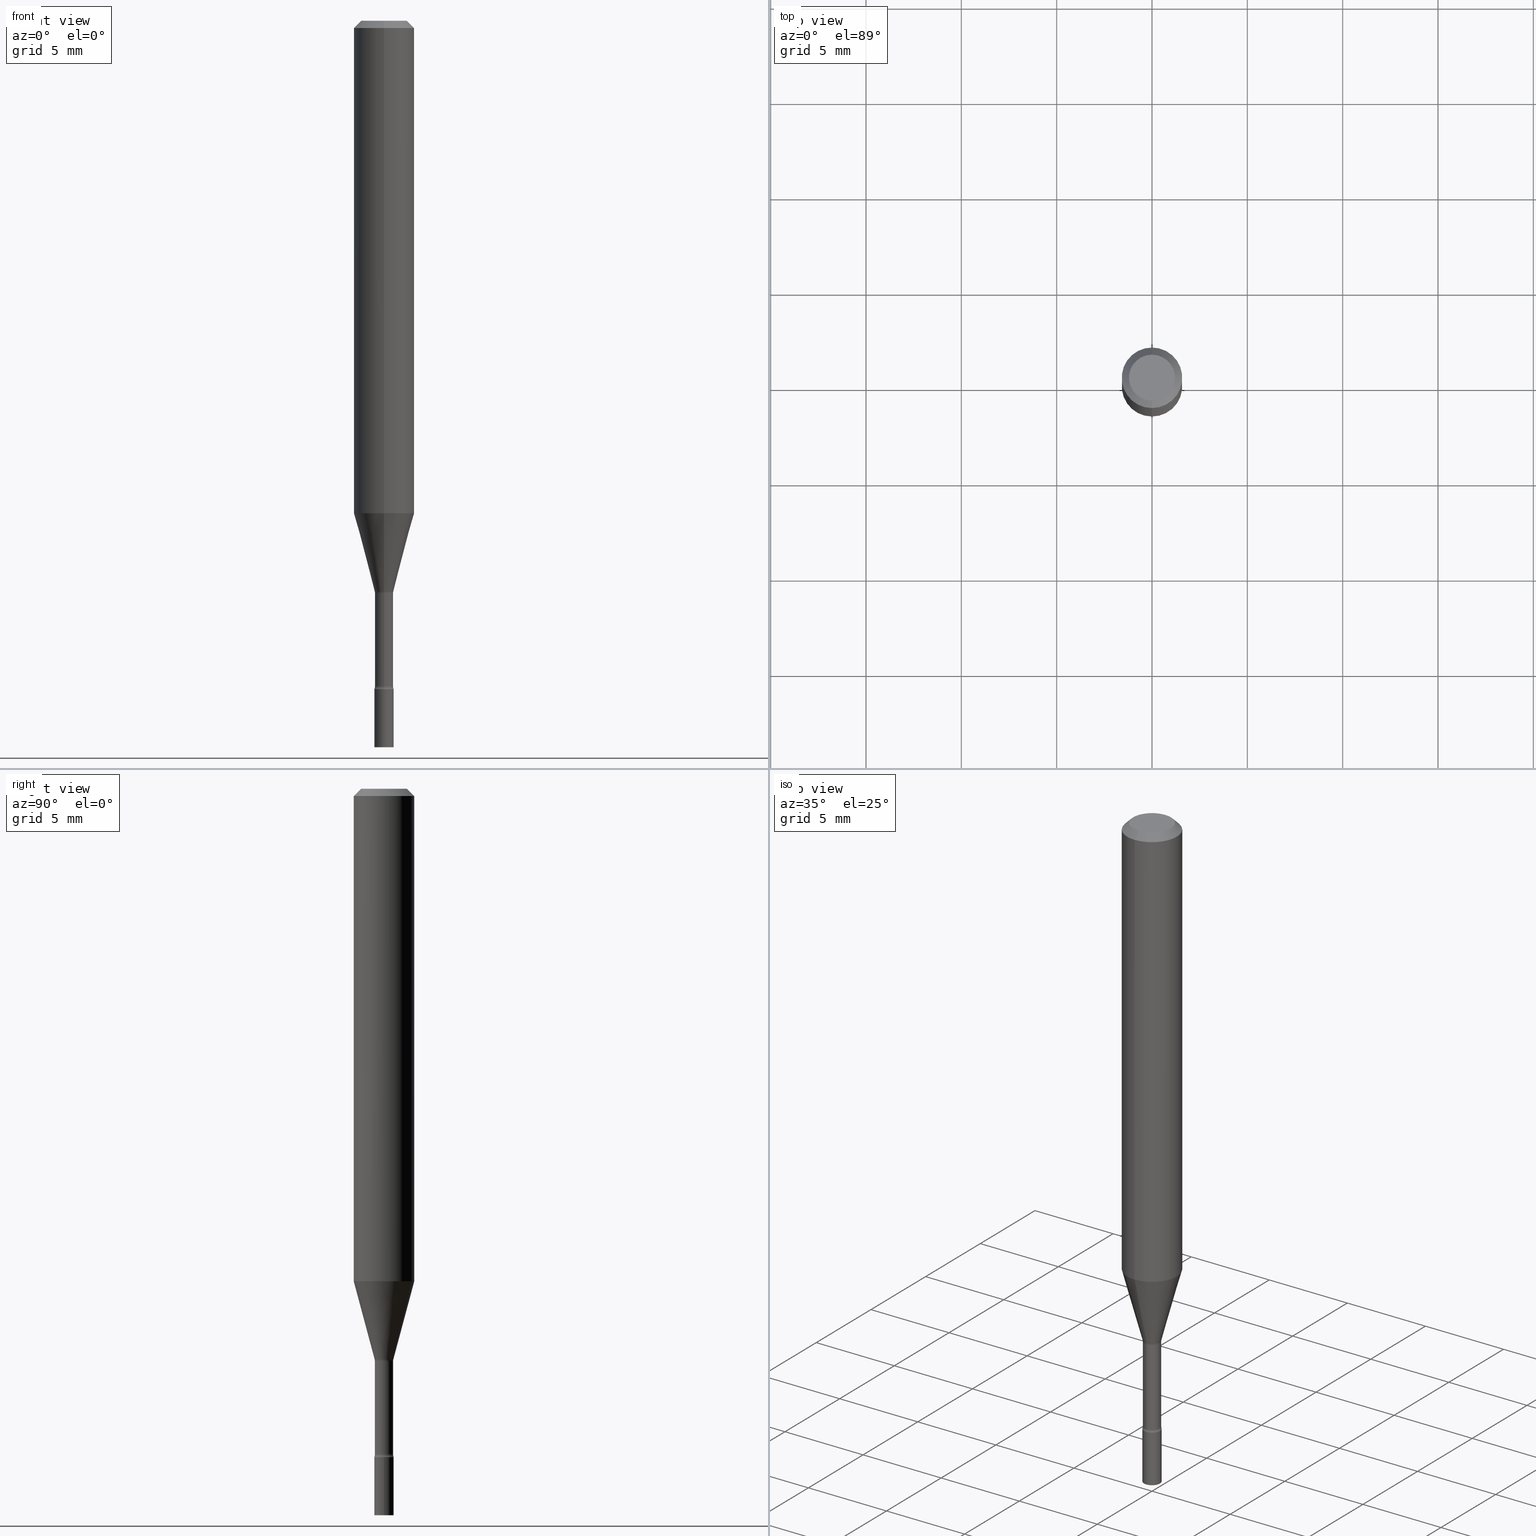
[diagram: canonical four-view strip — front | top / right | iso, engineering-drawing reading convention]
A machine part, canonical four-view strip (front | top / right | iso — engineering-drawing reading convention). The complete STEP part file that produces these views, byte-faithful:
ISO-10303-21;
HEADER;
FILE_DESCRIPTION (( 'STEP AP203' ),
    '1' );
FILE_NAME ('03407.STEP',
    '2024-03-08T21:18:10',
    ( '' ),
    ( '' ),
    'SwSTEP 2.0',
    'SolidWorks 2023',
    '' );
FILE_SCHEMA (( 'CONFIG_CONTROL_DESIGN' ));
ENDSEC;

DATA;
#1 = DIRECTION ( 'NONE',  ( 1.000000000000000000, -6.982962677686284065E-15, 0.000000000000000000 ) ) ;
#2 = ADVANCED_FACE ( 'NONE', ( #42 ), #229, .T. ) ;
#3 = CARTESIAN_POINT ( 'NONE',  ( 2.890482472440056423E-29, -4.126842913412989440E-15, -1.181974787463810905 ) ) ;
#4 = CC_DESIGN_PERSON_AND_ORGANIZATION_ASSIGNMENT ( #477, #267, ( #126 ) ) ;
#5 = EDGE_CURVE ( 'NONE', #189, #463, #41, .T. ) ;
#6 = AXIS2_PLACEMENT_3D ( 'NONE', #30, #480, #356 ) ;
#7 = DIRECTION ( 'NONE',  ( -6.982962677686265922E-15, -1.000000000000000000, 3.483106191921935554E-15 ) ) ;
#8 = APPROVAL ( #112, 'UNSPECIFIED' ) ;
#9 = AXIS2_PLACEMENT_3D ( 'NONE', #412, #100, #149 ) ;
#10 = DIRECTION ( 'NONE',  ( 2.445495417718738301E-29, -3.491443229612393590E-15, -1.000000000000000000 ) ) ;
#11 = ORIENTED_EDGE ( 'NONE', *, *, #485, .F. ) ;
#12 = ORIENTED_EDGE ( 'NONE', *, *, #491, .F. ) ;
#13 = DIRECTION ( 'NONE',  ( -2.445495417718738301E-29, 3.491443229612393590E-15, 1.000000000000000000 ) ) ;
#14 = ORIENTED_EDGE ( 'NONE', *, *, #485, .T. ) ;
#15 = PERSON_AND_ORGANIZATION_ROLE ( 'design_supplier' ) ;
#16 = PLANE ( 'NONE',  #446 ) ;
#17 = DIRECTION ( 'NONE',  ( -1.807323732225328562E-15, -0.2588190451025179639, 0.9659258262890690894 ) ) ;
#18 = EDGE_LOOP ( 'NONE', ( #274, #313, #487, #11 ) ) ;
#19 = ORIENTED_EDGE ( 'NONE', *, *, #5, .T. ) ;
#20 = PERSON_AND_ORGANIZATION_ROLE ( 'creator' ) ;
#21 = DIRECTION ( 'NONE',  ( -2.445495417718738301E-29, 3.491443229612393590E-15, 1.000000000000000000 ) ) ;
#22 = CIRCLE ( 'NONE', #292, 0.01499999999999998904 ) ;
#23 = VECTOR ( 'NONE', #364, 39.37007874015748143 ) ;
#24 = PERSON_AND_ORGANIZATION ( #63, #443 ) ;
#25 = CARTESIAN_POINT ( 'NONE',  ( 3.668243126578114756E-31, -5.237164844418600911E-17, -0.01500000000000003067 ) ) ;
#26 = ORIENTED_EDGE ( 'NONE', *, *, #37, .T. ) ;
#27 = DIRECTION ( 'NONE',  ( -2.445495417718738301E-29, 3.491443229612393590E-15, 1.000000000000000000 ) ) ;
#28 = DIRECTION ( 'NONE',  ( -2.445495417718738301E-29, 3.491443229612393590E-15, 1.000000000000000000 ) ) ;
#29 = EDGE_CURVE ( 'NONE', #260, #489, #284, .T. ) ;
#30 = CARTESIAN_POINT ( 'NONE',  ( 1.396592535537619965E-16, 0.01999999999999476155, -1.500000000000000222 ) ) ;
#31 = ADVANCED_BREP_SHAPE_REPRESENTATION ( '03407', ( #472, #473, #316 ), #119 ) ;
#32 = EDGE_LOOP ( 'NONE', ( #441, #79, #259, #104 ) ) ;
#33 = CLOSED_SHELL ( 'NONE', ( #427, #169, #243, #216, #152, #58, #2, #199, #180, #410, #358, #507, #339, #460 ) ) ;
#34 = AXIS2_PLACEMENT_3D ( 'NONE', #120, #317, #397 ) ;
#35 = CARTESIAN_POINT ( 'NONE',  ( 2.890513926601829062E-29, -4.126797869263070906E-15, -1.181974787463810905 ) ) ;
#36 = DIRECTION ( 'NONE',  ( -6.982962677686265922E-15, -1.000000000000000000, 0.000000000000000000 ) ) ;
#37 = EDGE_CURVE ( 'NONE', #250, #222, #368, .T. ) ;
#38 = DIRECTION ( 'NONE',  ( 7.105427357601000281E-15, 1.000000000000000000, 0.000000000000000000 ) ) ;
#39 = AXIS2_PLACEMENT_3D ( 'NONE', #128, #449, #408 ) ;
#40 = SECURITY_CLASSIFICATION ( '', '', #276 ) ;
#41 = LINE ( 'NONE', #194, #286 ) ;
#42 = FACE_OUTER_BOUND ( 'NONE', #303, .T. ) ;
#43 = APPROVAL ( #309, 'UNSPECIFIED' ) ;
#44 = CARTESIAN_POINT ( 'NONE',  ( 2.401634446869427315E-16, 0.03379999999999587501, -1.181974787463811127 ) ) ;
#45 = APPLICATION_CONTEXT ( 'configuration controlled 3d designs of mechanical parts and assemblies' ) ;
#46 = VERTEX_POINT ( 'NONE', #486 ) ;
#47 = CARTESIAN_POINT ( 'NONE',  ( 2.906514588320573934E-16, 0.01931111260565986434, -1.178092501787273205 ) ) ;
#48 = CIRCLE ( 'NONE', #88, 0.06250000000000000000 ) ;
#49 = DIRECTION ( 'NONE',  ( -2.445495417718738301E-29, 3.491443229612393590E-15, 1.000000000000000000 ) ) ;
#50 = FACE_OUTER_BOUND ( 'NONE', #18, .T. ) ;
#51 = EDGE_CURVE ( 'NONE', #250, #189, #385, .T. ) ;
#52 = CARTESIAN_POINT ( 'NONE',  ( -2.360241385057623348E-16, -0.03380000000000482618, -1.374121224617320447 ) ) ;
#53 = VERTEX_POINT ( 'NONE', #73 ) ;
#54 = VECTOR ( 'NONE', #167, 39.37007874015748143 ) ;
#55 = DIRECTION ( 'NONE',  ( 4.937700262164548042E-15, 0.7071067811865451302, -0.7071067811865499042 ) ) ;
#56 = ORIENTED_EDGE ( 'NONE', *, *, #491, .T. ) ;
#57 = VERTEX_POINT ( 'NONE', #83 ) ;
#58 = ADVANCED_FACE ( 'NONE', ( #50 ), #118, .T. ) ;
#59 = CARTESIAN_POINT ( 'NONE',  ( -0.02000000000000000042, -4.885624580782109696E-15, -1.500000000000000222 ) ) ;
#60 = ORIENTED_EDGE ( 'NONE', *, *, #268, .F. ) ;
#61 = ORIENTED_EDGE ( 'NONE', *, *, #318, .F. ) ;
#62 = FACE_OUTER_BOUND ( 'NONE', #506, .T. ) ;
#63 = PERSON ( 'UNSPECIFIED', 'UNSPECIFIED', 'UNSPECIFIED', ('UNSPECIFIED'), ('UNSPECIFIED'), ('UNSPECIFIED') ) ;
#64 = EDGE_LOOP ( 'NONE', ( #150, #281, #275, #513 ) ) ;
#65 = ORIENTED_EDGE ( 'NONE', *, *, #404, .F. ) ;
#66 = DATE_AND_TIME ( #71, #417 ) ;
#67 = DIRECTION ( 'NONE',  ( -6.982962677686265922E-15, -1.000000000000000000, 3.491443229612393195E-15 ) ) ;
#68 = CIRCLE ( 'NONE', #366, 0.01880000000000000074 ) ;
#69 = AXIS2_PLACEMENT_3D ( 'NONE', #407, #326, #496 ) ;
#70 = AXIS2_PLACEMENT_3D ( 'NONE', #135, #273, #425 ) ;
#71 = CALENDAR_DATE ( 2024, 8, 3 ) ;
#72 = CARTESIAN_POINT ( 'NONE',  ( 2.881019814769580720E-29, -4.113243089222302259E-15, -1.178092501787273205 ) ) ;
#73 = CARTESIAN_POINT ( 'NONE',  ( -4.364351673553668696E-16, -0.06250000000000356659, -1.016909379709240335 ) ) ;
#74 = PERSON_AND_ORGANIZATION_ROLE ( 'classification_officer' ) ;
#75 = EDGE_CURVE ( 'NONE', #394, #98, #107, .T. ) ;
#76 = CARTESIAN_POINT ( 'NONE',  ( 3.668203209277704895E-29, -5.237222008264718177E-15, -1.500000000000000222 ) ) ;
#77 = ORIENTED_EDGE ( 'NONE', *, *, #294, .T. ) ;
#78 = DIRECTION ( 'NONE',  ( 1.000000000000000000, -6.982962677686265922E-15, 4.876176775795935793E-29 ) ) ;
#79 = ORIENTED_EDGE ( 'NONE', *, *, #124, .T. ) ;
#80 = CIRCLE ( 'NONE', #240, 0.01500000000000001853 ) ;
#81 = CARTESIAN_POINT ( 'NONE',  ( 4.440892098500625669E-16, 0.06250000000000000000, -2.182152018507745747E-16 ) ) ;
#82 = EDGE_CURVE ( 'NONE', #308, #46, #22, .T. ) ;
#83 = CARTESIAN_POINT ( 'NONE',  ( 4.440892098500875639E-16, 0.06249999999999995143, -0.01500000000000024751 ) ) ;
#84 = DIRECTION ( 'NONE',  ( -2.445495417718738301E-29, 3.491443229612393590E-15, 1.000000000000000000 ) ) ;
#85 = DIRECTION ( 'NONE',  ( 1.000000000000000000, -6.982962677686284065E-15, 0.000000000000000000 ) ) ;
#86 = LENGTH_MEASURE_WITH_UNIT ( LENGTH_MEASURE( 0.02539999999999999897 ), #290 );
#87 = EDGE_CURVE ( 'NONE', #53, #466, #48, .T. ) ;
#88 = AXIS2_PLACEMENT_3D ( 'NONE', #370, #49, #134 ) ;
#89 = CYLINDRICAL_SURFACE ( 'NONE', #214, 0.06250000000000000000 ) ;
#90 = EDGE_CURVE ( 'NONE', #168, #57, #253, .T. ) ;
#91 = LINE ( 'NONE', #383, #488 ) ;
#92 = ORIENTED_EDGE ( 'NONE', *, *, #499, .F. ) ;
#93 = CARTESIAN_POINT ( 'NONE',  ( 2.890513926601829062E-29, -4.126797869263070906E-15, -1.181974787463810905 ) ) ;
#94 = ORIENTED_EDGE ( 'NONE', *, *, #51, .T. ) ;
#95 = EDGE_CURVE ( 'NONE', #466, #53, #374, .T. ) ;
#96 = CC_DESIGN_APPROVAL ( #43, ( #138 ) ) ;
#97 = FACE_OUTER_BOUND ( 'NONE', #435, .T. ) ;
#98 = VERTEX_POINT ( 'NONE', #332 ) ;
#99 = DATE_AND_TIME ( #314, #396 ) ;
#100 = DIRECTION ( 'NONE',  ( -2.445495417718738301E-29, 3.491443229612393590E-15, 1.000000000000000000 ) ) ;
#101 = CALENDAR_DATE ( 2024, 8, 3 ) ;
#102 = DIRECTION ( 'NONE',  ( -6.982962677686265922E-15, -1.000000000000000000, 0.000000000000000000 ) ) ;
#103 = ORIENTED_EDGE ( 'NONE', *, *, #365, .F. ) ;
#104 = ORIENTED_EDGE ( 'NONE', *, *, #82, .F. ) ;
#105 = APPROVAL_STATUS ( 'not_yet_approved' ) ;
#106 = DIRECTION ( 'NONE',  ( -2.445468806185136597E-29, 3.491481338843145583E-15, 1.000000000000000000 ) ) ;
#107 = CIRCLE ( 'NONE', #415, 0.04749999999999999362 ) ;
#108 = APPROVAL_PERSON_ORGANIZATION ( #235, #8, #219 ) ;
#109 = ORIENTED_EDGE ( 'NONE', *, *, #351, .F. ) ;
#110 = CC_DESIGN_DATE_AND_TIME_ASSIGNMENT ( #182, #232, ( #40 ) ) ;
#111 = EDGE_LOOP ( 'NONE', ( #154, #379, #26, #65 ) ) ;
#112 = APPROVAL_STATUS ( 'not_yet_approved' ) ;
#113 = FACE_OUTER_BOUND ( 'NONE', #32, .T. ) ;
#114 = PRODUCT_DEFINITION_SHAPE ( 'NONE', 'NONE',  #138 ) ;
#115 = CARTESIAN_POINT ( 'NONE',  ( 1.396592535537590876E-16, 0.01999999999999518135, -1.380000000000000115 ) ) ;
#116 = EDGE_CURVE ( 'NONE', #98, #394, #177, .T. ) ;
#117 = CARTESIAN_POINT ( 'NONE',  ( -1.348487785899195480E-16, -0.01931111260566809387, -1.178092501787273205 ) ) ;
#118 = CONICAL_SURFACE ( 'NONE', #333, 0.01931111260566397911, 0.2617993877991500740 ) ;
#119 =( GEOMETRIC_REPRESENTATION_CONTEXT ( 3 ) GLOBAL_UNCERTAINTY_ASSIGNED_CONTEXT ( ( #497 ) ) GLOBAL_UNIT_ASSIGNED_CONTEXT ( ( #244, #171, #127 ) ) REPRESENTATION_CONTEXT ( 'NONE', 'WORKASPACE' ) );
#120 = CARTESIAN_POINT ( 'NONE',  ( 3.316907271900976096E-16, 0.04749999999999999362, -1.803014139647535596E-16 ) ) ;
#121 = VERTEX_POINT ( 'NONE', #47 ) ;
#122 = DIRECTION ( 'NONE',  ( -6.982962677686265922E-15, -1.000000000000000000, 3.491443229612393590E-15 ) ) ;
#123 = CARTESIAN_POINT ( 'NONE',  ( 0.000000000000000000, 0.000000000000000000, 0.000000000000000000 ) ) ;
#124 = EDGE_CURVE ( 'NONE', #121, #489, #475, .T. ) ;
#125 = VECTOR ( 'NONE', #55, 39.37007874015748143 ) ;
#126 = PRODUCT_DEFINITION_FORMATION_WITH_SPECIFIED_SOURCE ( 'ANY', '', #431, .NOT_KNOWN. ) ;
#127 =( NAMED_UNIT ( * ) SI_UNIT ( $, .STERADIAN. ) SOLID_ANGLE_UNIT ( ) );
#128 = CARTESIAN_POINT ( 'NONE',  ( 2.486847228314152234E-29, -3.550481368915166973E-15, -1.016909379709240557 ) ) ;
#129 = APPROVAL ( #105, 'UNSPECIFIED' ) ;
#130 = DIRECTION ( 'NONE',  ( 7.105427357601000281E-15, 1.000000000000000000, 0.000000000000000000 ) ) ;
#131 = AXIS2_PLACEMENT_3D ( 'NONE', #514, #322, #78 ) ;
#132 = CIRCLE ( 'NONE', #159, 0.06250000000000000000 ) ;
#133 = DIMENSIONAL_EXPONENTS ( 1.000000000000000000, 0.000000000000000000, 0.000000000000000000, 0.000000000000000000, 0.000000000000000000, 0.000000000000000000, 0.000000000000000000 ) ;
#134 = DIRECTION ( 'NONE',  ( -6.982962677686265922E-15, -1.000000000000000000, 4.370956789862821150E-15 ) ) ;
#135 = CARTESIAN_POINT ( 'NONE',  ( 3.374783676451858727E-29, -4.818191656865103840E-15, -1.380000000000000115 ) ) ;
#136 = CYLINDRICAL_SURFACE ( 'NONE', #343, 0.01880000000000000421 ) ;
#137 = ORIENTED_EDGE ( 'NONE', *, *, #519, .F. ) ;
#138 = PRODUCT_DEFINITION ( 'UNKNOWN', '', #126, #350 ) ;
#139 = CARTESIAN_POINT ( 'NONE',  ( 0.02000000000000000042, -5.376881261818443984E-15, -1.500000000000000222 ) ) ;
#140 = VERTEX_POINT ( 'NONE', #298 ) ;
#141 = ORIENTED_EDGE ( 'NONE', *, *, #299, .F. ) ;
#142 = COORDINATED_UNIVERSAL_TIME_OFFSET ( 5, 0, .BEHIND. ) ;
#143 = DIRECTION ( 'NONE',  ( -2.445495417718738301E-29, 3.491443229612393590E-15, 1.000000000000000000 ) ) ;
#144 = CIRCLE ( 'NONE', #453, 0.02000000000000000042 ) ;
#145 = AXIS2_PLACEMENT_3D ( 'NONE', #363, #450, #122 ) ;
#146 = LINE ( 'NONE', #183, #125 ) ;
#147 = ORIENTED_EDGE ( 'NONE', *, *, #294, .F. ) ;
#148 = APPROVAL_ROLE ( '' ) ;
#149 = DIRECTION ( 'NONE',  ( -6.982962677686265922E-15, -1.000000000000000000, 0.000000000000000000 ) ) ;
#150 = ORIENTED_EDGE ( 'NONE', *, *, #75, .F. ) ;
#151 = APPROVAL_DATE_TIME ( #156, #129 ) ;
#152 = ADVANCED_FACE ( 'NONE', ( #454 ), #89, .T. ) ;
#153 = DIRECTION ( 'NONE',  ( -6.982962677686265922E-15, -1.000000000000000000, 3.491443229612393590E-15 ) ) ;
#154 = ORIENTED_EDGE ( 'NONE', *, *, #5, .F. ) ;
#155 = ORIENTED_EDGE ( 'NONE', *, *, #29, .T. ) ;
#156 = DATE_AND_TIME ( #101, #495 ) ;
#157 = CARTESIAN_POINT ( 'NONE',  ( 3.374746952535488593E-29, -4.818244247603541543E-15, -1.380000000000000115 ) ) ;
#158 = CIRCLE ( 'NONE', #515, 0.01500000000000001853 ) ;
#159 = AXIS2_PLACEMENT_3D ( 'NONE', #320, #238, #319 ) ;
#160 = PERSON_AND_ORGANIZATION ( #63, #443 ) ;
#161 = FACE_OUTER_BOUND ( 'NONE', #376, .T. ) ;
#162 = DIRECTION ( 'NONE',  ( -2.445468806185136877E-29, 3.491481338843145188E-15, 1.000000000000000000 ) ) ;
#163 = EDGE_CURVE ( 'NONE', #140, #500, #144, .T. ) ;
#164 = CYLINDRICAL_SURFACE ( 'NONE', #447, 0.01880000000000000421 ) ;
#165 = PLANE ( 'NONE',  #6 ) ;
#166 = FACE_OUTER_BOUND ( 'NONE', #111, .T. ) ;
#167 = DIRECTION ( 'NONE',  ( -2.445468806185136877E-29, 3.491481338843145188E-15, 1.000000000000000000 ) ) ;
#168 = VERTEX_POINT ( 'NONE', #414 ) ;
#169 = ADVANCED_FACE ( 'NONE', ( #459 ), #136, .T. ) ;
#170 = CARTESIAN_POINT ( 'NONE',  ( 2.881019814769580720E-29, -4.113243089222302259E-15, -1.178092501787273205 ) ) ;
#171 =( NAMED_UNIT ( * ) PLANE_ANGLE_UNIT ( ) SI_UNIT ( $, .RADIAN. ) );
#172 = VECTOR ( 'NONE', #143, 39.37007874015748143 ) ;
#173 = CC_DESIGN_APPROVAL ( #129, ( #126 ) ) ;
#174 = EDGE_CURVE ( 'NONE', #260, #300, #184, .T. ) ;
#175 = CARTESIAN_POINT ( 'NONE',  ( -4.287811248607203282E-16, -0.06250000000000005551, -0.01499999999999981209 ) ) ;
#176 = DIRECTION ( 'NONE',  ( 1.000000000000000000, -7.105427357601001070E-15, 4.926315041838608080E-29 ) ) ;
#177 = CIRCLE ( 'NONE', #69, 0.04749999999999999362 ) ;
#178 = DIRECTION ( 'NONE',  ( 2.445495417718738301E-29, -3.491443229612393590E-15, -1.000000000000000000 ) ) ;
#179 = DIRECTION ( 'NONE',  ( -6.982962677686265922E-15, -1.000000000000000000, 0.000000000000000000 ) ) ;
#180 = ADVANCED_FACE ( 'NONE', ( #97 ), #315, .T. ) ;
#181 = ORIENTED_EDGE ( 'NONE', *, *, #95, .F. ) ;
#182 = DATE_AND_TIME ( #432, #334 ) ;
#183 = CARTESIAN_POINT ( 'NONE',  ( 4.364351673553919652E-16, 0.06249999999999995143, -0.01500000000000024751 ) ) ;
#184 = CIRCLE ( 'NONE', #9, 0.01880000000000000768 ) ;
#185 = VECTOR ( 'NONE', #287, 39.37007874015748143 ) ;
#186 = DIRECTION ( 'NONE',  ( -2.445495417718738301E-29, 3.491443229612393590E-15, 1.000000000000000000 ) ) ;
#187 = DIRECTION ( 'NONE',  ( 1.000000000000000000, -6.982962677686284065E-15, 0.000000000000000000 ) ) ;
#188 = ORIENTED_EDGE ( 'NONE', *, *, #499, .T. ) ;
#189 = VERTEX_POINT ( 'NONE', #59 ) ;
#190 = EDGE_CURVE ( 'NONE', #489, #46, #68, .T. ) ;
#191 = DIRECTION ( 'NONE',  ( -2.445495417718738301E-29, 3.491443229612393590E-15, 1.000000000000000000 ) ) ;
#192 = ORIENTED_EDGE ( 'NONE', *, *, #29, .F. ) ;
#193 = CARTESIAN_POINT ( 'NONE',  ( 2.401634446869476126E-16, 0.03379999999999522969, -1.374121224617320447 ) ) ;
#194 = CARTESIAN_POINT ( 'NONE',  ( -0.02000000000000000042, 1.421085471520200401E-16, -9.837870180509812545E-31 ) ) ;
#195 = ORIENTED_EDGE ( 'NONE', *, *, #371, .F. ) ;
#196 = DIRECTION ( 'NONE',  ( 1.000000000000000000, -7.105427357601001070E-15, 4.926315041838608080E-29 ) ) ;
#197 = AXIS2_PLACEMENT_3D ( 'NONE', #72, #28, #234 ) ;
#198 = CC_DESIGN_APPROVAL ( #8, ( #40 ) ) ;
#199 = ADVANCED_FACE ( 'NONE', ( #62 ), #378, .T. ) ;
#200 = EDGE_LOOP ( 'NONE', ( #261, #348 ) ) ;
#201 = DIRECTION ( 'NONE',  ( 1.000000000000000000, -6.982962677686284065E-15, 0.000000000000000000 ) ) ;
#202 = CYLINDRICAL_SURFACE ( 'NONE', #131, 0.02000000000000000042 ) ;
#203 = ORIENTED_EDGE ( 'NONE', *, *, #318, .T. ) ;
#204 = DIRECTION ( 'NONE',  ( -2.445495417718738021E-29, 3.491443229612393590E-15, 1.000000000000000000 ) ) ;
#205 = CIRCLE ( 'NONE', #505, 0.01880000000000000768 ) ;
#206 = APPROVAL_PERSON_ORGANIZATION ( #471, #129, #148 ) ;
#207 = CC_DESIGN_PERSON_AND_ORGANIZATION_ASSIGNMENT ( #311, #15, ( #126 ) ) ;
#208 = TOROIDAL_SURFACE ( 'NONE', #239, 0.03380000000000002447, 0.01500000000000001853 ) ;
#209 = AXIS2_PLACEMENT_3D ( 'NONE', #392, #27, #437 ) ;
#210 = LINE ( 'NONE', #398, #430 ) ;
#211 = CARTESIAN_POINT ( 'NONE',  ( -1.312796983404682503E-16, -0.01880000000000480592, -1.374121224617320447 ) ) ;
#212 = ORIENTED_EDGE ( 'NONE', *, *, #268, .T. ) ;
#213 = EDGE_LOOP ( 'NONE', ( #357, #155, #109, #60 ) ) ;
#214 = AXIS2_PLACEMENT_3D ( 'NONE', #123, #255, #411 ) ;
#215 = TOROIDAL_SURFACE ( 'NONE', #209, 0.03380000000000000365, 0.01499999999999998904 ) ;
#216 = ADVANCED_FACE ( 'NONE', ( #220 ), #354, .T. ) ;
#217 = CARTESIAN_POINT ( 'NONE',  ( 3.668243126578114756E-31, -5.237164844418600911E-17, -0.01500000000000003067 ) ) ;
#218 = EDGE_LOOP ( 'NONE', ( #92, #226 ) ) ;
#219 = APPROVAL_ROLE ( '' ) ;
#220 = FACE_OUTER_BOUND ( 'NONE', #64, .T. ) ;
#221 = ORIENTED_EDGE ( 'NONE', *, *, #282, .F. ) ;
#222 = VERTEX_POINT ( 'NONE', #272 ) ;
#223 = APPROVAL_ROLE ( '' ) ;
#224 = DIRECTION ( 'NONE',  ( -2.445495417718738301E-29, 3.491443229612393590E-15, 1.000000000000000000 ) ) ;
#225 = ADVANCED_FACE ( 'NONE', ( #381 ), #16, .T. ) ;
#226 = ORIENTED_EDGE ( 'NONE', *, *, #163, .F. ) ;
#227 = APPROVAL_DATE_TIME ( #66, #8 ) ;
#228 = EDGE_CURVE ( 'NONE', #300, #500, #158, .T. ) ;
#229 = CONICAL_SURFACE ( 'NONE', #197, 0.01931111260566397911, 0.2617993877991500740 ) ;
#230 = TOROIDAL_SURFACE ( 'NONE', #145, 0.03380000000000002447, 0.01500000000000001853 ) ;
#231 = CARTESIAN_POINT ( 'NONE',  ( -1.312796983405018262E-16, -0.01880000000000000421, 6.563913271671300931E-17 ) ) ;
#232 = DATE_TIME_ROLE ( 'classification_date' ) ;
#233 = CARTESIAN_POINT ( 'NONE',  ( -0.02000000000000000042, -4.885624580782109696E-15, -1.380000000000000115 ) ) ;
#234 = DIRECTION ( 'NONE',  ( -6.982962677686265922E-15, -1.000000000000000000, 0.000000000000000000 ) ) ;
#235 = PERSON_AND_ORGANIZATION ( #63, #443 ) ;
#236 = PLANE ( 'NONE',  #34 ) ;
#237 = ORIENTED_EDGE ( 'NONE', *, *, #288, .F. ) ;
#238 = DIRECTION ( 'NONE',  ( -2.445495417718738301E-29, 3.491443229612393590E-15, 1.000000000000000000 ) ) ;
#239 = AXIS2_PLACEMENT_3D ( 'NONE', #335, #337, #153 ) ;
#240 = AXIS2_PLACEMENT_3D ( 'NONE', #193, #196, #38 ) ;
#241 = FACE_OUTER_BOUND ( 'NONE', #218, .T. ) ;
#242 = DIRECTION ( 'NONE',  ( -6.982962677686265922E-15, -1.000000000000000000, 3.491443229612393195E-15 ) ) ;
#243 = ADVANCED_FACE ( 'NONE', ( #465 ), #208, .F. ) ;
#244 =( CONVERSION_BASED_UNIT ( 'INCH', #86 ) LENGTH_UNIT ( ) NAMED_UNIT ( #133 ) );
#245 = AXIS2_PLACEMENT_3D ( 'NONE', #44, #176, #130 ) ;
#246 = DIRECTION ( 'NONE',  ( -6.982962677686267499E-15, -1.000000000000000000, 0.000000000000000000 ) ) ;
#247 = AXIS2_PLACEMENT_3D ( 'NONE', #419, #504, #187 ) ;
#248 = ORIENTED_EDGE ( 'NONE', *, *, #124, .F. ) ;
#249 = DIRECTION ( 'NONE',  ( -1.000000000000000000, 6.982962677686265922E-15, -4.883557194083112340E-29 ) ) ;
#250 = VERTEX_POINT ( 'NONE', #139 ) ;
#251 = EDGE_CURVE ( 'NONE', #98, #57, #146, .T. ) ;
#252 = DIRECTION ( 'NONE',  ( -2.445495417718738301E-29, 3.491443229612393590E-15, 1.000000000000000000 ) ) ;
#253 = CIRCLE ( 'NONE', #304, 0.06250000000000000000 ) ;
#254 = CIRCLE ( 'NONE', #70, 0.02000000000000000042 ) ;
#255 = DIRECTION ( 'NONE',  ( -2.445495417718738301E-29, 3.491443229612393590E-15, 1.000000000000000000 ) ) ;
#256 = CARTESIAN_POINT ( 'NONE',  ( 0.02000000000000000042, -1.396592535537253145E-16, 9.752353551591871936E-31 ) ) ;
#257 = DIRECTION ( 'NONE',  ( -2.445495417718738301E-29, 3.491443229612393590E-15, 1.000000000000000000 ) ) ;
#258 = FACE_OUTER_BOUND ( 'NONE', #336, .T. ) ;
#259 = ORIENTED_EDGE ( 'NONE', *, *, #190, .T. ) ;
#260 = VERTEX_POINT ( 'NONE', #424 ) ;
#261 = ORIENTED_EDGE ( 'NONE', *, *, #116, .T. ) ;
#262 = AXIS2_PLACEMENT_3D ( 'NONE', #157, #280, #1 ) ;
#263 = CARTESIAN_POINT ( 'NONE',  ( 0.000000000000000000, 0.000000000000000000, 0.000000000000000000 ) ) ;
#264 = CARTESIAN_POINT ( 'NONE',  ( 1.335820343229324654E-16, 0.01879999999999587210, -1.181974787463810905 ) ) ;
#265 = EDGE_LOOP ( 'NONE', ( #56, #502 ) ) ;
#266 = ORIENTED_EDGE ( 'NONE', *, *, #87, .T. ) ;
#267 = PERSON_AND_ORGANIZATION_ROLE ( 'creator' ) ;
#268 = EDGE_CURVE ( 'NONE', #300, #46, #340, .T. ) ;
#269 = DIRECTION ( 'NONE',  ( -6.982962677686265922E-15, -1.000000000000000000, 0.000000000000000000 ) ) ;
#270 = ORIENTED_EDGE ( 'NONE', *, *, #228, .F. ) ;
#271 = COORDINATED_UNIVERSAL_TIME_OFFSET ( 5, 0, .BEHIND. ) ;
#272 = CARTESIAN_POINT ( 'NONE',  ( 0.02000000000000000042, -4.957903501157267351E-15, -1.380000000000000115 ) ) ;
#273 = DIRECTION ( 'NONE',  ( -2.445495417718738301E-29, 3.491443229612393590E-15, 1.000000000000000000 ) ) ;
#274 = ORIENTED_EDGE ( 'NONE', *, *, #299, .T. ) ;
#275 = ORIENTED_EDGE ( 'NONE', *, *, #90, .T. ) ;
#276 = SECURITY_CLASSIFICATION_LEVEL ( 'unclassified' ) ;
#277 = DIRECTION ( 'NONE',  ( 1.000000000000000000, -6.982962677686265922E-15, 4.876176775795935793E-29 ) ) ;
#278 = ORIENTED_EDGE ( 'NONE', *, *, #174, .T. ) ;
#279 = CALENDAR_DATE ( 2024, 8, 3 ) ;
#280 = DIRECTION ( 'NONE',  ( -2.445468806185136597E-29, 3.491481338843145583E-15, 1.000000000000000000 ) ) ;
#281 = ORIENTED_EDGE ( 'NONE', *, *, #519, .T. ) ;
#282 = EDGE_CURVE ( 'NONE', #300, #260, #205, .T. ) ;
#283 = FACE_OUTER_BOUND ( 'NONE', #458, .T. ) ;
#284 = LINE ( 'NONE', #433, #172 ) ;
#285 = CARTESIAN_POINT ( 'NONE',  ( 0.000000000000000000, 0.000000000000000000, 0.000000000000000000 ) ) ;
#286 = VECTOR ( 'NONE', #162, 39.37007874015748143 ) ;
#287 = DIRECTION ( 'NONE',  ( -2.445495417718738301E-29, 3.491443229612393590E-15, 1.000000000000000000 ) ) ;
#288 = EDGE_CURVE ( 'NONE', #121, #466, #503, .T. ) ;
#289 = CARTESIAN_POINT ( 'NONE',  ( 3.668203209277704895E-29, -5.237222008264718177E-15, -1.500000000000000222 ) ) ;
#290 =( LENGTH_UNIT ( ) NAMED_UNIT ( * ) SI_UNIT ( $, .METRE. ) );
#291 = DIRECTION ( 'NONE',  ( -2.445468806185136597E-29, 3.491481338843145583E-15, 1.000000000000000000 ) ) ;
#292 = AXIS2_PLACEMENT_3D ( 'NONE', #328, #249, #246 ) ;
#293 = CIRCLE ( 'NONE', #462, 0.01880000000000000074 ) ;
#294 = EDGE_CURVE ( 'NONE', #53, #168, #91, .T. ) ;
#295 = DIRECTION ( 'NONE',  ( -6.982962677686265922E-15, -1.000000000000000000, 0.000000000000000000 ) ) ;
#296 = AXIS2_PLACEMENT_3D ( 'NONE', #217, #10, #349 ) ;
#297 = CIRCLE ( 'NONE', #247, 0.02000000000000000042 ) ;
#298 = CARTESIAN_POINT ( 'NONE',  ( 1.421085471520538132E-16, 0.01999999999999519523, -1.380000000000000115 ) ) ;
#299 = EDGE_CURVE ( 'NONE', #308, #121, #327, .T. ) ;
#300 = VERTEX_POINT ( 'NONE', #211 ) ;
#301 = DIRECTION ( 'NONE',  ( -1.000000000000000000, 6.982962677686265922E-15, -4.883557194083112340E-29 ) ) ;
#302 = CARTESIAN_POINT ( 'NONE',  ( 2.881019814769580720E-29, -4.113243089222302259E-15, -1.178092501787273205 ) ) ;
#303 = EDGE_LOOP ( 'NONE', ( #237, #384, #14, #181 ) ) ;
#304 = AXIS2_PLACEMENT_3D ( 'NONE', #456, #372, #7 ) ;
#305 = PERSON_AND_ORGANIZATION ( #63, #443 ) ;
#306 = ADVANCED_FACE ( 'NONE', ( #461 ), #165, .T. ) ;
#307 = DIRECTION ( 'NONE',  ( 1.839019923739598738E-15, 0.2588190451025247363, 0.9659258262890673130 ) ) ;
#308 = VERTEX_POINT ( 'NONE', #117 ) ;
#309 = APPROVAL_STATUS ( 'not_yet_approved' ) ;
#310 = DIRECTION ( 'NONE',  ( 6.982962677686265922E-15, 1.000000000000000000, -3.483106191921935554E-15 ) ) ;
#311 = PERSON_AND_ORGANIZATION ( #63, #443 ) ;
#312 = CARTESIAN_POINT ( 'NONE',  ( 1.372137078140271983E-16, 0.01931111260565986434, -1.178092501787273205 ) ) ;
#313 = ORIENTED_EDGE ( 'NONE', *, *, #288, .T. ) ;
#314 = CALENDAR_DATE ( 2024, 8, 3 ) ;
#315 = CONICAL_SURFACE ( 'NONE', #296, 0.06250000000000000000, 0.7853981633974483900 ) ;
#316 = AXIS2_PLACEMENT_3D ( 'NONE', #369, #493, #330 ) ;
#317 = DIRECTION ( 'NONE',  ( 2.445495417718738021E-29, -3.491443229612393590E-15, -1.000000000000000000 ) ) ;
#318 = EDGE_CURVE ( 'NONE', #260, #140, #80, .T. ) ;
#319 = DIRECTION ( 'NONE',  ( -6.982962677686265922E-15, -1.000000000000000000, 3.483106191921935554E-15 ) ) ;
#320 = CARTESIAN_POINT ( 'NONE',  ( 3.668243126578114756E-31, -5.237164844418600911E-17, -0.01500000000000003067 ) ) ;
#321 = EDGE_CURVE ( 'NONE', #57, #168, #132, .T. ) ;
#322 = DIRECTION ( 'NONE',  ( -2.445468806185136597E-29, 3.491481338843145583E-15, 1.000000000000000000 ) ) ;
#323 = CLOSED_SHELL ( 'NONE', ( #399, #225, #440, #306 ) ) ;
#324 = APPROVAL_PERSON_ORGANIZATION ( #24, #43, #223 ) ;
#325 = ORIENTED_EDGE ( 'NONE', *, *, #116, .F. ) ;
#326 = DIRECTION ( 'NONE',  ( -2.445495417718738301E-29, 3.491443229612393590E-15, 1.000000000000000000 ) ) ;
#327 = CIRCLE ( 'NONE', #395, 0.01931111260566397911 ) ;
#328 = CARTESIAN_POINT ( 'NONE',  ( -2.360241385057668707E-16, -0.03380000000000412536, -1.181974787463810905 ) ) ;
#329 = AXIS2_PLACEMENT_3D ( 'NONE', #76, #400, #201 ) ;
#330 = DIRECTION ( 'NONE',  ( 1.000000000000000000, 0.000000000000000000, 0.000000000000000000 ) ) ;
#331 = CC_DESIGN_PERSON_AND_ORGANIZATION_ASSIGNMENT ( #160, #20, ( #138 ) ) ;
#332 = CARTESIAN_POINT ( 'NONE',  ( 3.840629472727447874E-16, 0.04749999999999999362, -1.947592745229184119E-16 ) ) ;
#333 = AXIS2_PLACEMENT_3D ( 'NONE', #170, #252, #295 ) ;
#334 = LOCAL_TIME ( 16, 18, 10.00000000000000000, #271 ) ;
#335 = CARTESIAN_POINT ( 'NONE',  ( 3.360370590718576112E-29, -4.797718613059664510E-15, -1.374121224617320447 ) ) ;
#336 = EDGE_LOOP ( 'NONE', ( #61, #221, #405, #188 ) ) ;
#337 = DIRECTION ( 'NONE',  ( -2.445495417718738301E-29, 3.491443229612393590E-15, 1.000000000000000000 ) ) ;
#338 = ORIENTED_EDGE ( 'NONE', *, *, #190, .F. ) ;
#339 = ADVANCED_FACE ( 'NONE', ( #283 ), #164, .T. ) ;
#340 = LINE ( 'NONE', #231, #428 ) ;
#341 = ORIENTED_EDGE ( 'NONE', *, *, #174, .F. ) ;
#342 = ORIENTED_EDGE ( 'NONE', *, *, #351, .T. ) ;
#343 = AXIS2_PLACEMENT_3D ( 'NONE', #346, #186, #422 ) ;
#344 = PERSON_AND_ORGANIZATION_ROLE ( 'design_owner' ) ;
#345 = AXIS2_PLACEMENT_3D ( 'NONE', #474, #106, #277 ) ;
#346 = CARTESIAN_POINT ( 'NONE',  ( 0.000000000000000000, 0.000000000000000000, 0.000000000000000000 ) ) ;
#347 = ORIENTED_EDGE ( 'NONE', *, *, #82, .T. ) ;
#348 = ORIENTED_EDGE ( 'NONE', *, *, #75, .T. ) ;
#349 = DIRECTION ( 'NONE',  ( 6.982962677686265922E-15, 1.000000000000000000, -3.483106191921935554E-15 ) ) ;
#350 = DESIGN_CONTEXT ( 'detailed design', #362, 'design' ) ;
#351 = EDGE_CURVE ( 'NONE', #46, #489, #293, .T. ) ;
#352 = DIRECTION ( 'NONE',  ( -2.445495417718738301E-29, 3.491443229612393590E-15, 1.000000000000000000 ) ) ;
#353 = DATE_AND_TIME ( #279, #409 ) ;
#354 = CONICAL_SURFACE ( 'NONE', #482, 0.06250000000000000000, 0.7853981633974483900 ) ;
#355 = CIRCLE ( 'NONE', #516, 0.01931111260566397911 ) ;
#356 = DIRECTION ( 'NONE',  ( -1.000000000000000000, 6.982962677686265922E-15, -4.876176775795935793E-29 ) ) ;
#357 = ORIENTED_EDGE ( 'NONE', *, *, #282, .T. ) ;
#358 = ADVANCED_FACE ( 'NONE', ( #241 ), #444, .F. ) ;
#359 = CARTESIAN_POINT ( 'NONE',  ( -3.773273898774340269E-16, -0.04749999999999999362, 1.369278322902589535E-16 ) ) ;
#360 = DIRECTION ( 'NONE',  ( -6.982962677686265922E-15, -1.000000000000000000, 3.491443229612393195E-15 ) ) ;
#361 = AXIS2_PLACEMENT_3D ( 'NONE', #115, #204, #478 ) ;
#362 = APPLICATION_CONTEXT ( 'configuration controlled 3d designs of mechanical parts and assemblies' ) ;
#363 = CARTESIAN_POINT ( 'NONE',  ( 3.360370590718576112E-29, -4.797718613059664510E-15, -1.374121224617320447 ) ) ;
#364 = DIRECTION ( 'NONE',  ( -4.851104656540964275E-15, -0.7071067811865500152, -0.7071067811865450192 ) ) ;
#365 = EDGE_CURVE ( 'NONE', #466, #57, #401, .T. ) ;
#366 = AXIS2_PLACEMENT_3D ( 'NONE', #93, #512, #269 ) ;
#367 = DIRECTION ( 'NONE',  ( -2.445495417718738301E-29, 3.491443229612393590E-15, 1.000000000000000000 ) ) ;
#368 = LINE ( 'NONE', #256, #54 ) ;
#369 = CARTESIAN_POINT ( 'NONE',  ( 0.000000000000000000, 0.000000000000000000, 0.000000000000000000 ) ) ;
#370 = CARTESIAN_POINT ( 'NONE',  ( 2.486847228314152234E-29, -3.550481368915166973E-15, -1.016909379709240557 ) ) ;
#371 = EDGE_CURVE ( 'NONE', #189, #250, #387, .T. ) ;
#372 = DIRECTION ( 'NONE',  ( -2.445495417718738301E-29, 3.491443229612393590E-15, 1.000000000000000000 ) ) ;
#373 = DIRECTION ( 'NONE',  ( 1.000000000000000000, -6.982962677686265922E-15, 4.876176775795935793E-29 ) ) ;
#374 = CIRCLE ( 'NONE', #39, 0.06250000000000000000 ) ;
#375 = EDGE_LOOP ( 'NONE', ( #248, #141, #347, #342 ) ) ;
#376 = EDGE_LOOP ( 'NONE', ( #94, #19, #12, #382 ) ) ;
#377 = PRODUCT_RELATED_PRODUCT_CATEGORY ( 'detail', '', ( #431 ) ) ;
#378 = CYLINDRICAL_SURFACE ( 'NONE', #442, 0.06250000000000000000 ) ;
#379 = ORIENTED_EDGE ( 'NONE', *, *, #371, .T. ) ;
#380 = MECHANICAL_CONTEXT ( 'NONE', #45, 'mechanical' ) ;
#381 = FACE_OUTER_BOUND ( 'NONE', #265, .T. ) ;
#382 = ORIENTED_EDGE ( 'NONE', *, *, #37, .F. ) ;
#383 = CARTESIAN_POINT ( 'NONE',  ( -4.364351673553916201E-16, -0.06250000000000000000, 2.182152018507745747E-16 ) ) ;
#384 = ORIENTED_EDGE ( 'NONE', *, *, #391, .T. ) ;
#385 = CIRCLE ( 'NONE', #402, 0.02000000000000000042 ) ;
#386 = SHAPE_DEFINITION_REPRESENTATION ( #114, #31 ) ;
#387 = CIRCLE ( 'NONE', #329, 0.02000000000000000042 ) ;
#388 = CARTESIAN_POINT ( 'NONE',  ( 3.360407158191717827E-29, -4.797666246356834055E-15, -1.374121224617320447 ) ) ;
#389 = EDGE_LOOP ( 'NONE', ( #470, #195 ) ) ;
#390 = COORDINATED_UNIVERSAL_TIME_OFFSET ( 5, 0, .BEHIND. ) ;
#391 = EDGE_CURVE ( 'NONE', #121, #308, #355, .T. ) ;
#392 = CARTESIAN_POINT ( 'NONE',  ( 2.890482472440056423E-29, -4.126842913412989440E-15, -1.181974787463810905 ) ) ;
#393 = CARTESIAN_POINT ( 'NONE',  ( 4.440892098500872681E-16, 0.06249999999999643341, -1.016909379709240779 ) ) ;
#394 = VERTEX_POINT ( 'NONE', #359 ) ;
#395 = AXIS2_PLACEMENT_3D ( 'NONE', #302, #257, #179 ) ;
#396 = LOCAL_TIME ( 16, 18, 10.00000000000000000, #390 ) ;
#397 = DIRECTION ( 'NONE',  ( 6.982962677686265922E-15, 1.000000000000000000, -3.491443229612393590E-15 ) ) ;
#398 = CARTESIAN_POINT ( 'NONE',  ( -1.348487785899195480E-16, -0.01931111260566809387, -1.178092501787273205 ) ) ;
#399 = ADVANCED_FACE ( 'NONE', ( #161 ), #202, .T. ) ;
#400 = DIRECTION ( 'NONE',  ( -2.445468806185136597E-29, 3.491481338843145583E-15, 1.000000000000000000 ) ) ;
#401 = LINE ( 'NONE', #81, #185 ) ;
#402 = AXIS2_PLACEMENT_3D ( 'NONE', #289, #291, #85 ) ;
#403 = CC_DESIGN_SECURITY_CLASSIFICATION ( #40, ( #126 ) ) ;
#404 = EDGE_CURVE ( 'NONE', #463, #222, #483, .T. ) ;
#405 = ORIENTED_EDGE ( 'NONE', *, *, #228, .T. ) ;
#406 = CARTESIAN_POINT ( 'NONE',  ( 3.374783676451858727E-29, -4.818191656865103840E-15, -1.380000000000000115 ) ) ;
#407 = CARTESIAN_POINT ( 'NONE',  ( 7.071326349001730860E-46, -1.009575987209695366E-31, -2.891572111632972921E-17 ) ) ;
#408 = DIRECTION ( 'NONE',  ( -6.982962677686265922E-15, -1.000000000000000000, 4.370956789862821150E-15 ) ) ;
#409 = LOCAL_TIME ( 16, 18, 10.00000000000000000, #423 ) ;
#410 = ADVANCED_FACE ( 'NONE', ( #484 ), #236, .F. ) ;
#411 = DIRECTION ( 'NONE',  ( -6.982962677686265922E-15, -1.000000000000000000, 3.491443229612393195E-15 ) ) ;
#412 = CARTESIAN_POINT ( 'NONE',  ( 3.360407158191717827E-29, -4.797666246356834055E-15, -1.374121224617320447 ) ) ;
#413 = ORIENTED_EDGE ( 'NONE', *, *, #90, .F. ) ;
#414 = CARTESIAN_POINT ( 'NONE',  ( -4.364351673553912750E-16, -0.06250000000000005551, -0.01499999999999981209 ) ) ;
#415 = AXIS2_PLACEMENT_3D ( 'NONE', #490, #367, #451 ) ;
#416 = ORIENTED_EDGE ( 'NONE', *, *, #95, .T. ) ;
#417 = LOCAL_TIME ( 16, 18, 10.00000000000000000, #421 ) ;
#418 = DIRECTION ( 'NONE',  ( -2.445495417718738301E-29, 3.491443229612393590E-15, 1.000000000000000000 ) ) ;
#419 = CARTESIAN_POINT ( 'NONE',  ( 3.374746952535488593E-29, -4.818244247603541543E-15, -1.380000000000000115 ) ) ;
#420 = ORIENTED_EDGE ( 'NONE', *, *, #321, .F. ) ;
#421 = COORDINATED_UNIVERSAL_TIME_OFFSET ( 5, 0, .BEHIND. ) ;
#422 = DIRECTION ( 'NONE',  ( -6.982962677686265922E-15, -1.000000000000000000, 3.491443229612393195E-15 ) ) ;
#423 = COORDINATED_UNIVERSAL_TIME_OFFSET ( 5, 0, .BEHIND. ) ;
#424 = CARTESIAN_POINT ( 'NONE',  ( 1.378452907374931886E-16, 0.01879999999999520943, -1.374121224617320447 ) ) ;
#425 = DIRECTION ( 'NONE',  ( -6.982962677686265922E-15, -1.000000000000000000, 0.000000000000000000 ) ) ;
#426 = ORIENTED_EDGE ( 'NONE', *, *, #365, .T. ) ;
#427 = ADVANCED_FACE ( 'NONE', ( #113 ), #455, .F. ) ;
#428 = VECTOR ( 'NONE', #13, 39.37007874015748143 ) ;
#429 = ORIENTED_EDGE ( 'NONE', *, *, #163, .T. ) ;
#430 = VECTOR ( 'NONE', #17, 39.37007874015748854 ) ;
#431 = PRODUCT ( '03407', '03407', '', ( #380 ) ) ;
#432 = CALENDAR_DATE ( 2024, 8, 3 ) ;
#433 = CARTESIAN_POINT ( 'NONE',  ( 1.335820343228988402E-16, 0.01880000000000000421, -6.563913271671300931E-17 ) ) ;
#434 = FACE_OUTER_BOUND ( 'NONE', #375, .T. ) ;
#435 = EDGE_LOOP ( 'NONE', ( #137, #325, #518, #510 ) ) ;
#436 = APPLICATION_PROTOCOL_DEFINITION ( 'international standard', 'config_control_design', 1994, #362 ) ;
#437 = DIRECTION ( 'NONE',  ( -6.982962677686265922E-15, -1.000000000000000000, 3.491443229612393195E-15 ) ) ;
#438 = EDGE_LOOP ( 'NONE', ( #341, #203, #429, #270 ) ) ;
#439 = DIRECTION ( 'NONE',  ( -2.445495417718738301E-29, 3.491443229612393590E-15, 1.000000000000000000 ) ) ;
#440 = ADVANCED_FACE ( 'NONE', ( #166 ), #520, .T. ) ;
#441 = ORIENTED_EDGE ( 'NONE', *, *, #391, .F. ) ;
#442 = AXIS2_PLACEMENT_3D ( 'NONE', #263, #418, #67 ) ;
#443 = ORGANIZATION ( 'UNSPECIFIED', 'UNSPECIFIED', '' ) ;
#444 = PLANE ( 'NONE',  #361 ) ;
#445 = CARTESIAN_POINT ( 'NONE',  ( 2.881019814769580720E-29, -4.113243089222302259E-15, -1.178092501787273205 ) ) ;
#446 = AXIS2_PLACEMENT_3D ( 'NONE', #501, #469, #373 ) ;
#447 = AXIS2_PLACEMENT_3D ( 'NONE', #285, #352, #242 ) ;
#448 = LINE ( 'NONE', #175, #23 ) ;
#449 = DIRECTION ( 'NONE',  ( -2.445495417718738301E-29, 3.491443229612393590E-15, 1.000000000000000000 ) ) ;
#450 = DIRECTION ( 'NONE',  ( -2.445495417718738301E-29, 3.491443229612393590E-15, 1.000000000000000000 ) ) ;
#451 = DIRECTION ( 'NONE',  ( -6.982962677686266711E-15, -1.000000000000000000, 3.491443229612393984E-15 ) ) ;
#452 = CC_DESIGN_PERSON_AND_ORGANIZATION_ASSIGNMENT ( #511, #344, ( #431 ) ) ;
#453 = AXIS2_PLACEMENT_3D ( 'NONE', #406, #191, #102 ) ;
#454 = FACE_OUTER_BOUND ( 'NONE', #509, .T. ) ;
#455 = TOROIDAL_SURFACE ( 'NONE', #476, 0.03380000000000000365, 0.01499999999999998904 ) ;
#456 = CARTESIAN_POINT ( 'NONE',  ( 3.668243126578114756E-31, -5.237164844418600911E-17, -0.01500000000000003067 ) ) ;
#457 = CARTESIAN_POINT ( 'NONE',  ( -1.396592535536916646E-16, -0.02000000000000483336, -1.380000000000000115 ) ) ;
#458 = EDGE_LOOP ( 'NONE', ( #192, #278, #212, #338 ) ) ;
#459 = FACE_OUTER_BOUND ( 'NONE', #213, .T. ) ;
#460 = ADVANCED_FACE ( 'NONE', ( #434 ), #215, .F. ) ;
#461 = FACE_OUTER_BOUND ( 'NONE', #389, .T. ) ;
#462 = AXIS2_PLACEMENT_3D ( 'NONE', #35, #517, #481 ) ;
#463 = VERTEX_POINT ( 'NONE', #233 ) ;
#464 = DATE_TIME_ROLE ( 'creation_date' ) ;
#465 = FACE_OUTER_BOUND ( 'NONE', #438, .T. ) ;
#466 = VERTEX_POINT ( 'NONE', #393 ) ;
#467 = APPROVAL_DATE_TIME ( #353, #43 ) ;
#468 = CC_DESIGN_PERSON_AND_ORGANIZATION_ASSIGNMENT ( #305, #74, ( #40 ) ) ;
#469 = DIRECTION ( 'NONE',  ( -2.438088387897960049E-29, 3.491481338843145188E-15, 1.000000000000000000 ) ) ;
#470 = ORIENTED_EDGE ( 'NONE', *, *, #51, .F. ) ;
#471 = PERSON_AND_ORGANIZATION ( #63, #443 ) ;
#472 = MANIFOLD_SOLID_BREP ( 'Body-Move/Copy2[1]', #323 ) ;
#473 = MANIFOLD_SOLID_BREP ( 'Body-Move/Copy2[2]', #33 ) ;
#474 = CARTESIAN_POINT ( 'NONE',  ( 0.000000000000000000, 0.000000000000000000, 0.000000000000000000 ) ) ;
#475 = CIRCLE ( 'NONE', #245, 0.01499999999999998904 ) ;
#476 = AXIS2_PLACEMENT_3D ( 'NONE', #3, #84, #360 ) ;
#477 = PERSON_AND_ORGANIZATION ( #63, #443 ) ;
#478 = DIRECTION ( 'NONE',  ( -6.982962677686265922E-15, -1.000000000000000000, 3.491443229612393590E-15 ) ) ;
#479 = CC_DESIGN_DATE_AND_TIME_ASSIGNMENT ( #99, #464, ( #138 ) ) ;
#480 = DIRECTION ( 'NONE',  ( 2.438088387897960049E-29, -3.491481338843145188E-15, -1.000000000000000000 ) ) ;
#481 = DIRECTION ( 'NONE',  ( -6.982962677686265922E-15, -1.000000000000000000, 0.000000000000000000 ) ) ;
#482 = AXIS2_PLACEMENT_3D ( 'NONE', #25, #178, #310 ) ;
#483 = CIRCLE ( 'NONE', #262, 0.02000000000000000042 ) ;
#484 = FACE_OUTER_BOUND ( 'NONE', #200, .T. ) ;
#485 = EDGE_CURVE ( 'NONE', #308, #53, #210, .T. ) ;
#486 = CARTESIAN_POINT ( 'NONE',  ( -1.312796983404729095E-16, -0.01880000000000412938, -1.181974787463810905 ) ) ;
#487 = ORIENTED_EDGE ( 'NONE', *, *, #87, .F. ) ;
#488 = VECTOR ( 'NONE', #21, 39.37007874015748143 ) ;
#489 = VERTEX_POINT ( 'NONE', #264 ) ;
#490 = CARTESIAN_POINT ( 'NONE',  ( 7.071326349001730860E-46, -1.009575987209695366E-31, -2.891572111632972921E-17 ) ) ;
#491 = EDGE_CURVE ( 'NONE', #222, #463, #297, .T. ) ;
#492 = APPLICATION_PROTOCOL_DEFINITION ( 'international standard', 'config_control_design', 1994, #45 ) ;
#493 = DIRECTION ( 'NONE',  ( 0.000000000000000000, 0.000000000000000000, 1.000000000000000000 ) ) ;
#494 = VECTOR ( 'NONE', #307, 39.37007874015748854 ) ;
#495 = LOCAL_TIME ( 16, 18, 10.00000000000000000, #142 ) ;
#496 = DIRECTION ( 'NONE',  ( -6.982962677686266711E-15, -1.000000000000000000, 3.491443229612393984E-15 ) ) ;
#497 = UNCERTAINTY_MEASURE_WITH_UNIT (LENGTH_MEASURE( 1.000000000000000082E-05 ), #244, 'distance_accuracy_value', 'NONE');
#498 = DIRECTION ( 'NONE',  ( -6.982962677686265922E-15, -1.000000000000000000, 0.000000000000000000 ) ) ;
#499 = EDGE_CURVE ( 'NONE', #500, #140, #254, .T. ) ;
#500 = VERTEX_POINT ( 'NONE', #457 ) ;
#501 = CARTESIAN_POINT ( 'NONE',  ( 3.374746952535488593E-29, -4.818244247603541543E-15, -1.380000000000000115 ) ) ;
#502 = ORIENTED_EDGE ( 'NONE', *, *, #404, .T. ) ;
#503 = LINE ( 'NONE', #312, #494 ) ;
#504 = DIRECTION ( 'NONE',  ( -2.445468806185136597E-29, 3.491481338843145583E-15, 1.000000000000000000 ) ) ;
#505 = AXIS2_PLACEMENT_3D ( 'NONE', #388, #224, #498 ) ;
#506 = EDGE_LOOP ( 'NONE', ( #103, #416, #77, #420 ) ) ;
#507 = ADVANCED_FACE ( 'NONE', ( #258 ), #230, .F. ) ;
#508 = DIRECTION ( 'NONE',  ( -6.982962677686267499E-15, -1.000000000000000000, 0.000000000000000000 ) ) ;
#509 = EDGE_LOOP ( 'NONE', ( #266, #426, #413, #147 ) ) ;
#510 = ORIENTED_EDGE ( 'NONE', *, *, #321, .T. ) ;
#511 = PERSON_AND_ORGANIZATION ( #63, #443 ) ;
#512 = DIRECTION ( 'NONE',  ( -2.445495417718738301E-29, 3.491443229612393590E-15, 1.000000000000000000 ) ) ;
#513 = ORIENTED_EDGE ( 'NONE', *, *, #251, .F. ) ;
#514 = CARTESIAN_POINT ( 'NONE',  ( 0.000000000000000000, 0.000000000000000000, 0.000000000000000000 ) ) ;
#515 = AXIS2_PLACEMENT_3D ( 'NONE', #52, #301, #508 ) ;
#516 = AXIS2_PLACEMENT_3D ( 'NONE', #445, #439, #36 ) ;
#517 = DIRECTION ( 'NONE',  ( -2.445495417718738301E-29, 3.491443229612393590E-15, 1.000000000000000000 ) ) ;
#518 = ORIENTED_EDGE ( 'NONE', *, *, #251, .T. ) ;
#519 = EDGE_CURVE ( 'NONE', #394, #168, #448, .T. ) ;
#520 = CYLINDRICAL_SURFACE ( 'NONE', #345, 0.02000000000000000042 ) ;
ENDSEC;
END-ISO-10303-21;
